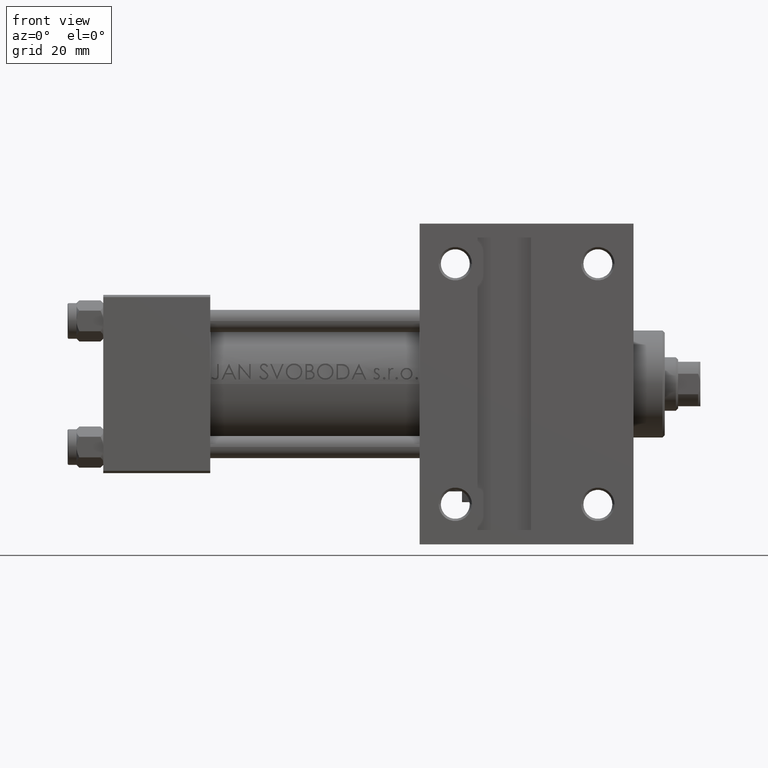
[diagram: clean part render]
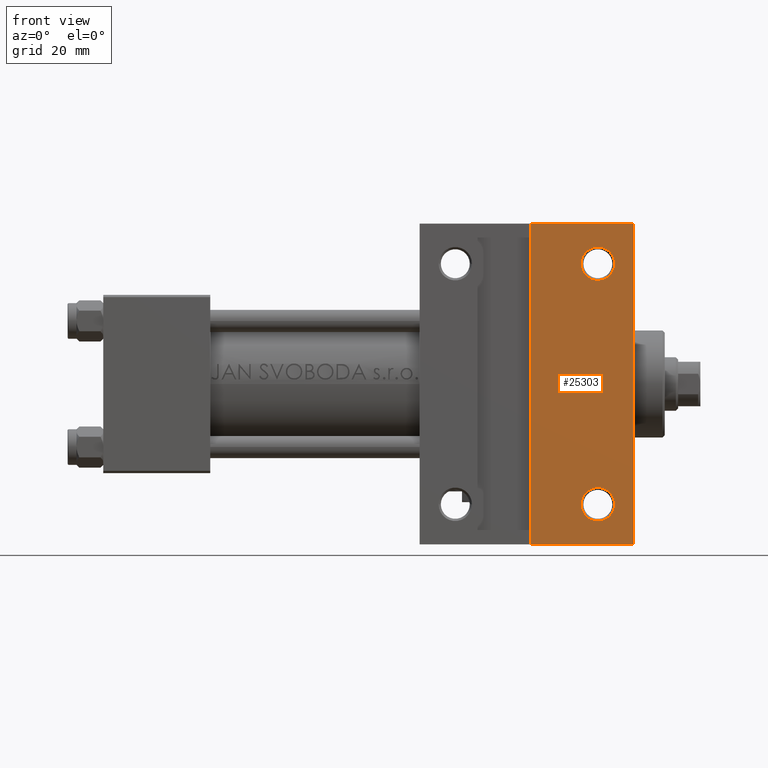
[diagram: same view with one face highlighted and labeled with its STEP entity id]
A machine part, front view. The second image highlights one B-rep face of the part: STEP entity #25303.
In plain terms, the highlighted planar face has unit normal (0, -1, 0).
Its self-contained STEP definition (entity closure, byte-faithful):
#759 = VECTOR ( 'NONE', #48582, 1000.000000000000000 ) ;
#1061 = VERTEX_POINT ( 'NONE', #39690 ) ;
#1065 = CARTESIAN_POINT ( 'NONE',  ( 119.0000000000000000, -36.00000000000001421, -20.00000000000000000 ) ) ;
#1102 = EDGE_LOOP ( 'NONE', ( #25094, #41872 ) ) ;
#1157 = DIRECTION ( 'NONE',  ( -0.000000000000000000, -0.000000000000000000, 1.000000000000000000 ) ) ;
#1231 = VECTOR ( 'NONE', #45603, 1000.000000000000000 ) ;
#2671 = CARTESIAN_POINT ( 'NONE',  ( 71.00000000000001421, -36.00000000000000711, -20.00000000000000000 ) ) ;
#2864 = DIRECTION ( 'NONE',  ( -0.000000000000000000, -1.000000000000000000, -0.000000000000000000 ) ) ;
#2947 = DIRECTION ( 'NONE',  ( -1.000000000000000000, 0.000000000000000000, -0.000000000000000000 ) ) ;
#3584 = CIRCLE ( 'NONE', #16323, 3.749950000000001893 ) ;
#3741 = DIRECTION ( 'NONE',  ( -1.000000000000000000, 0.000000000000000000, 0.000000000000000000 ) ) ;
#3943 = CARTESIAN_POINT ( 'NONE',  ( 119.0000000000000142, 19.99999999999999645, -20.00000000000000000 ) ) ;
#4424 = LINE ( 'NONE', #3943, #1231 ) ;
#4590 = ORIENTED_EDGE ( 'NONE', *, *, #45686, .T. ) ;
#5342 = CARTESIAN_POINT ( 'NONE',  ( 95.99999999999997158, 35.99999999999995026, -20.00000000000000000 ) ) ;
#5507 = ORIENTED_EDGE ( 'NONE', *, *, #18935, .F. ) ;
#8781 = VERTEX_POINT ( 'NONE', #26775 ) ;
#9913 = CIRCLE ( 'NONE', #24257, 3.749950000000001893 ) ;
#9948 = CARTESIAN_POINT ( 'NONE',  ( 111.0000000000000142, -27.00000000000000000, -20.00000000000000000 ) ) ;
#10990 = DIRECTION ( 'NONE',  ( -1.000000000000000000, 0.000000000000000000, 0.000000000000000000 ) ) ;
#12383 = CARTESIAN_POINT ( 'NONE',  ( 111.0000000000000142, -27.00000000000000000, -20.00000000000000000 ) ) ;
#12421 = LINE ( 'NONE', #43343, #15867 ) ;
#13643 = LINE ( 'NONE', #2671, #759 ) ;
#14127 = ORIENTED_EDGE ( 'NONE', *, *, #45593, .T. ) ;
#14341 = CARTESIAN_POINT ( 'NONE',  ( 95.99999999999997158, -35.99999999999999289, -20.00000000000000000 ) ) ;
#15231 = EDGE_LOOP ( 'NONE', ( #5507, #14127, #18412, #4590 ) ) ;
#15867 = VECTOR ( 'NONE', #39603, 1000.000000000000000 ) ;
#16323 = AXIS2_PLACEMENT_3D ( 'NONE', #45802, #38796, #27081 ) ;
#16941 = DIRECTION ( 'NONE',  ( -1.000000000000000000, 0.000000000000000000, 0.000000000000000000 ) ) ;
#18412 = ORIENTED_EDGE ( 'NONE', *, *, #31365, .T. ) ;
#18935 = EDGE_CURVE ( 'NONE', #30850, #8781, #48272, .T. ) ;
#20914 = EDGE_CURVE ( 'NONE', #21297, #1061, #23635, .T. ) ;
#20916 = EDGE_CURVE ( 'NONE', #22901, #22236, #45939, .T. ) ;
#21297 = VERTEX_POINT ( 'NONE', #22270 ) ;
#22179 = ORIENTED_EDGE ( 'NONE', *, *, #35369, .T. ) ;
#22236 = VERTEX_POINT ( 'NONE', #41288 ) ;
#22270 = CARTESIAN_POINT ( 'NONE',  ( 114.7499500000000126, 27.00000000000000000, -20.00000000000000000 ) ) ;
#22835 = AXIS2_PLACEMENT_3D ( 'NONE', #12383, #1157, #3741 ) ;
#22901 = VERTEX_POINT ( 'NONE', #33929 ) ;
#23598 = CARTESIAN_POINT ( 'NONE',  ( 111.0000000000000142, 27.00000000000000000, -20.00000000000000000 ) ) ;
#23635 = CIRCLE ( 'NONE', #46718, 3.749950000000001893 ) ;
#24257 = AXIS2_PLACEMENT_3D ( 'NONE', #9948, #43636, #16941 ) ;
#25094 = ORIENTED_EDGE ( 'NONE', *, *, #20916, .T. ) ;
#25303 = ADVANCED_FACE ( 'NONE', ( #37601, #30347, #29864 ), #29369, .T. ) ;
#25633 = DIRECTION ( 'NONE',  ( 0.000000000000000000, 0.000000000000000000, -1.000000000000000000 ) ) ;
#26775 = CARTESIAN_POINT ( 'NONE',  ( 95.99999999999997158, -35.99999999999999289, -20.00000000000000000 ) ) ;
#27081 = DIRECTION ( 'NONE',  ( -1.000000000000000000, 0.000000000000000000, 0.000000000000000000 ) ) ;
#27663 = VECTOR ( 'NONE', #2864, 1000.000000000000000 ) ;
#28702 = VERTEX_POINT ( 'NONE', #1065 ) ;
#29369 = PLANE ( 'NONE',  #39326 ) ;
#29864 = FACE_BOUND ( 'NONE', #47324, .T. ) ;
#30347 = FACE_BOUND ( 'NONE', #1102, .T. ) ;
#30850 = VERTEX_POINT ( 'NONE', #5342 ) ;
#31365 = EDGE_CURVE ( 'NONE', #43888, #28702, #4424, .T. ) ;
#33117 = CARTESIAN_POINT ( 'NONE',  ( 119.0000000000000142, 19.99999999999999645, -20.00000000000000000 ) ) ;
#33929 = CARTESIAN_POINT ( 'NONE',  ( 107.2500500000000159, -27.00000000000000000, -20.00000000000000000 ) ) ;
#34121 = EDGE_CURVE ( 'NONE', #22236, #22901, #9913, .T. ) ;
#35369 = EDGE_CURVE ( 'NONE', #1061, #21297, #3584, .T. ) ;
#35905 = ORIENTED_EDGE ( 'NONE', *, *, #20914, .T. ) ;
#37601 = FACE_OUTER_BOUND ( 'NONE', #15231, .T. ) ;
#38796 = DIRECTION ( 'NONE',  ( -0.000000000000000000, -0.000000000000000000, 1.000000000000000000 ) ) ;
#39326 = AXIS2_PLACEMENT_3D ( 'NONE', #33117, #25633, #2947 ) ;
#39603 = DIRECTION ( 'NONE',  ( 1.000000000000000000, 1.301042606982605715E-15, 0.000000000000000000 ) ) ;
#39690 = CARTESIAN_POINT ( 'NONE',  ( 107.2500500000000159, 27.00000000000000000, -20.00000000000000000 ) ) ;
#41288 = CARTESIAN_POINT ( 'NONE',  ( 114.7499500000000126, -27.00000000000000000, -20.00000000000000000 ) ) ;
#41872 = ORIENTED_EDGE ( 'NONE', *, *, #34121, .T. ) ;
#43056 = CARTESIAN_POINT ( 'NONE',  ( 118.9999999999999716, 36.00000000000001421, -20.00000000000000000 ) ) ;
#43343 = CARTESIAN_POINT ( 'NONE',  ( 70.99999999999998579, 35.99999999999995026, -20.00000000000000000 ) ) ;
#43636 = DIRECTION ( 'NONE',  ( -0.000000000000000000, -0.000000000000000000, 1.000000000000000000 ) ) ;
#43888 = VERTEX_POINT ( 'NONE', #43056 ) ;
#45593 = EDGE_CURVE ( 'NONE', #30850, #43888, #12421, .T. ) ;
#45603 = DIRECTION ( 'NONE',  ( 0.000000000000000000, -1.000000000000000000, 0.000000000000000000 ) ) ;
#45686 = EDGE_CURVE ( 'NONE', #28702, #8781, #13643, .T. ) ;
#45802 = CARTESIAN_POINT ( 'NONE',  ( 111.0000000000000142, 27.00000000000000000, -20.00000000000000000 ) ) ;
#45939 = CIRCLE ( 'NONE', #22835, 3.749950000000001893 ) ;
#46552 = DIRECTION ( 'NONE',  ( -0.000000000000000000, -0.000000000000000000, 1.000000000000000000 ) ) ;
#46718 = AXIS2_PLACEMENT_3D ( 'NONE', #23598, #46552, #10990 ) ;
#47324 = EDGE_LOOP ( 'NONE', ( #22179, #35905 ) ) ;
#48272 = LINE ( 'NONE', #14341, #27663 ) ;
#48582 = DIRECTION ( 'NONE',  ( -1.000000000000000000, 1.445602896647339656E-16, -0.000000000000000000 ) ) ;